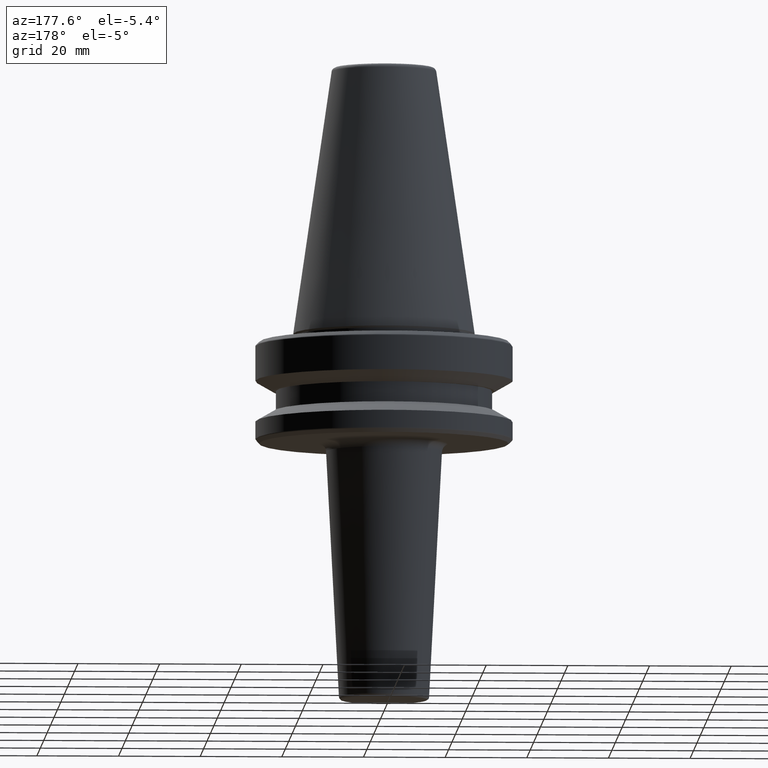
[diagram: clean part render]
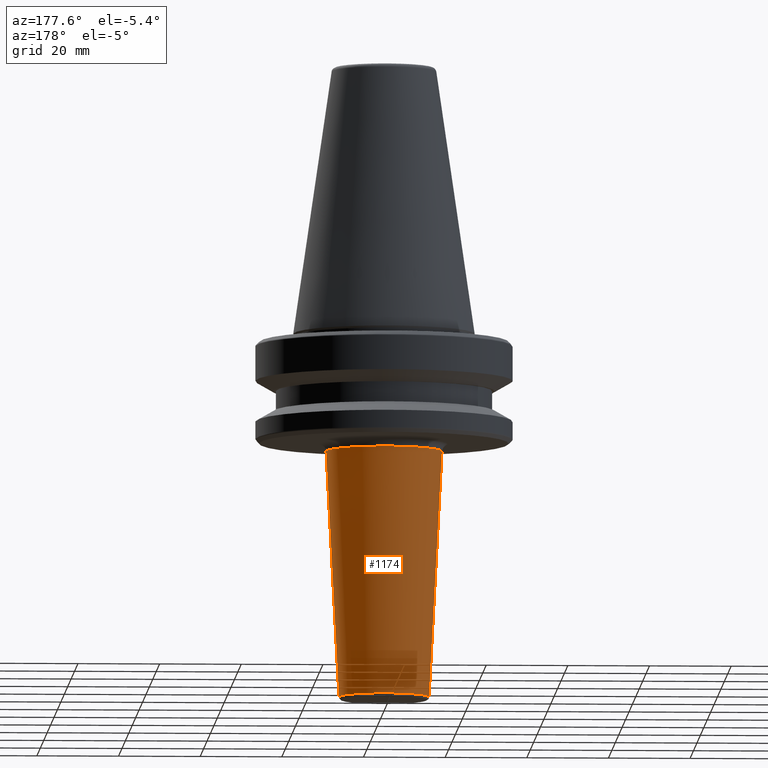
[diagram: same view with one face highlighted and labeled with its STEP entity id]
A machine part, auxiliary view. The second image highlights one B-rep face of the part: STEP entity #1174.
In plain terms, the highlighted conical surface has half-angle 3 deg.
Its self-contained STEP definition (entity closure, byte-faithful):
#52 = CARTESIAN_POINT ( 'NONE',  ( 0.0000000000000000000, 0.0000000000000000000, -28.89532808751410500 ) ) ;
#101 = CARTESIAN_POINT ( 'NONE',  ( -14.20236015875221500, 1.739287490875379600E-015, -28.89532808751410500 ) ) ;
#134 = DIRECTION ( 'NONE',  ( -1.000000000000000000, 0.0000000000000000000, 0.0000000000000000000 ) ) ;
#141 = VECTOR ( 'NONE', #755, 1000.000000000000100 ) ;
#228 = VERTEX_POINT ( 'NONE', #473 ) ;
#251 = DIRECTION ( 'NONE',  ( 0.05233595624294388300, 0.0000000000000000000, 0.9986295347545739400 ) ) ;
#281 = CARTESIAN_POINT ( 'NONE',  ( -14.30169009483160300, 1.751451899703293000E-015, -27.00000000000000400 ) ) ;
#303 = LINE ( 'NONE', #809, #804 ) ;
#322 = LINE ( 'NONE', #281, #141 ) ;
#382 = ORIENTED_EDGE ( 'NONE', *, *, #892, .T. ) ;
#416 = ORIENTED_EDGE ( 'NONE', *, *, #494, .T. ) ;
#424 = CARTESIAN_POINT ( 'NONE',  ( 14.20236015875221500, 0.0000000000000000000, -28.89532808751410500 ) ) ;
#454 = CARTESIAN_POINT ( 'NONE',  ( 0.0000000000000000000, 0.0000000000000000000, -89.24186876499439300 ) ) ;
#473 = CARTESIAN_POINT ( 'NONE',  ( 11.03973197443175500, 0.0000000000000000000, -89.24186876499439300 ) ) ;
#484 = ORIENTED_EDGE ( 'NONE', *, *, #673, .F. ) ;
#494 = EDGE_CURVE ( 'NONE', #797, #553, #710, .T. ) ;
#515 = CARTESIAN_POINT ( 'NONE',  ( -11.03973197443175500, 1.351977242593253800E-015, -89.24186876499439300 ) ) ;
#522 = DIRECTION ( 'NONE',  ( -0.0000000000000000000, -0.0000000000000000000, 1.000000000000000000 ) ) ;
#553 = VERTEX_POINT ( 'NONE', #424 ) ;
#557 = DIRECTION ( 'NONE',  ( 1.000000000000000000, 0.0000000000000000000, 0.0000000000000000000 ) ) ;
#673 = EDGE_CURVE ( 'NONE', #228, #553, #303, .T. ) ;
#693 = DIRECTION ( 'NONE',  ( -0.0000000000000000000, -0.0000000000000000000, -1.000000000000000000 ) ) ;
#704 = EDGE_CURVE ( 'NONE', #228, #1141, #948, .T. ) ;
#710 = CIRCLE ( 'NONE', #1150, 14.20236015875221500 ) ;
#755 = DIRECTION ( 'NONE',  ( -0.05233595624294388300, 6.409306129323716300E-018, 0.9986295347545739400 ) ) ;
#797 = VERTEX_POINT ( 'NONE', #101 ) ;
#804 = VECTOR ( 'NONE', #251, 1000.000000000000100 ) ;
#809 = CARTESIAN_POINT ( 'NONE',  ( 14.30169009483160300, 0.0000000000000000000, -27.00000000000000400 ) ) ;
#839 = ORIENTED_EDGE ( 'NONE', *, *, #704, .T. ) ;
#892 = EDGE_CURVE ( 'NONE', #1141, #797, #322, .T. ) ;
#922 = FACE_OUTER_BOUND ( 'NONE', #1068, .T. ) ;
#948 = CIRCLE ( 'NONE', #1202, 11.03973197443175800 ) ;
#954 = DIRECTION ( 'NONE',  ( 1.000000000000000000, 0.0000000000000000000, 0.0000000000000000000 ) ) ;
#1068 = EDGE_LOOP ( 'NONE', ( #839, #382, #416, #484 ) ) ;
#1077 = AXIS2_PLACEMENT_3D ( 'NONE', #1182, #522, #954 ) ;
#1103 = DIRECTION ( 'NONE',  ( -0.0000000000000000000, -0.0000000000000000000, 1.000000000000000000 ) ) ;
#1136 = CONICAL_SURFACE ( 'NONE', #1077, 14.30169009483160300, 0.05235987755982993200 ) ;
#1141 = VERTEX_POINT ( 'NONE', #515 ) ;
#1150 = AXIS2_PLACEMENT_3D ( 'NONE', #52, #693, #134 ) ;
#1174 = ADVANCED_FACE ( 'NONE', ( #922 ), #1136, .T. ) ;
#1182 = CARTESIAN_POINT ( 'NONE',  ( 0.0000000000000000000, 0.0000000000000000000, -27.00000000000000400 ) ) ;
#1202 = AXIS2_PLACEMENT_3D ( 'NONE', #454, #1103, #557 ) ;